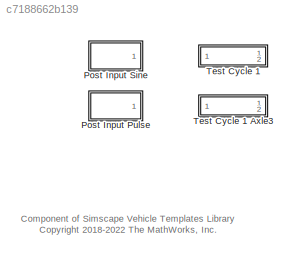
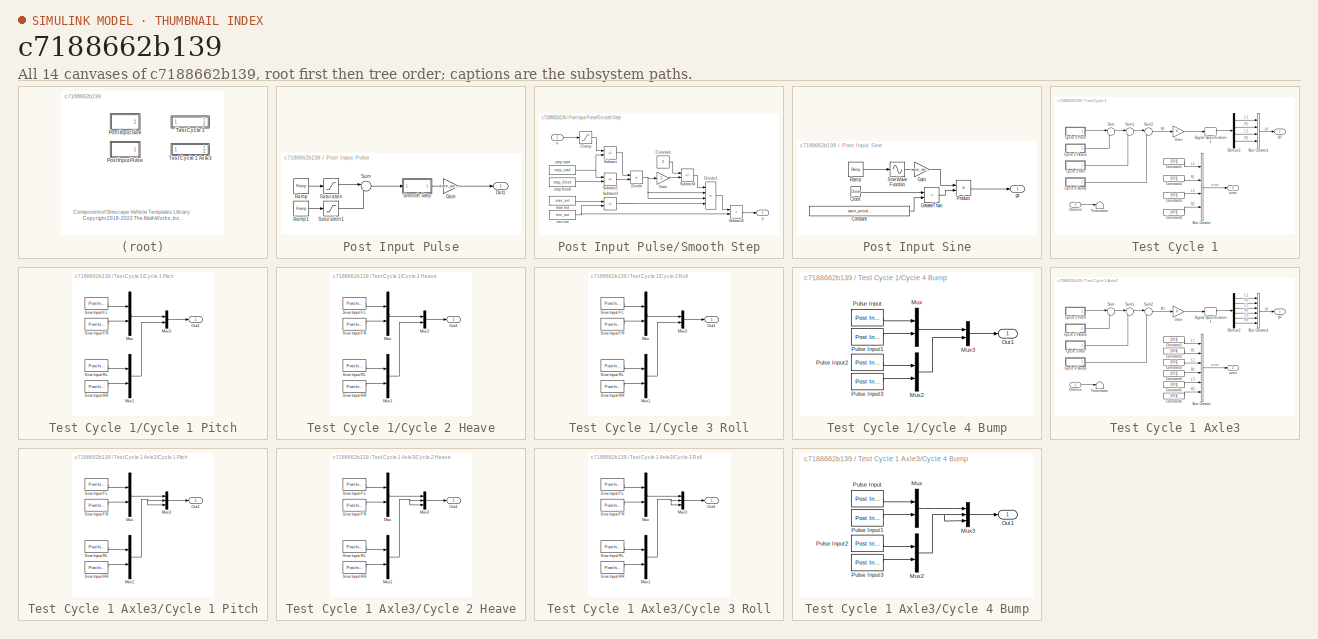
[diagram: thumbnail index - all 14 canvases of the model, root first then tree order]
MODEL slx_c7188662b139
KIND library
CONFIG AbsTol = auto
CONFIG EnableMultiTasking = off
CONFIG FixedStep = auto
CONFIG MaxStep = auto
CONFIG MinStep = auto
CONFIG RelTol = 1e-3
CONFIG SampleTimeConstraint = Unconstrained
CONFIG SolverName = VariableStepAuto
CONFIG StartTime = 0.0
CONFIG StopTime = 10.0
BLOCK [SubSystem] Post Input Pulse
  Ports = [0, 1]
  RequestExecContextInheritance = off
BLOCK [Gain] Post Input Pulse/Gain
  Gain = wave_amplitude
BLOCK [Outport] Post Input Pulse/Out1
  VectorParamsAs1DForOutWhenUnconnected = off
BLOCK [Reference] Post Input Pulse/Ramp  REF=simulink/Sources/Ramp
  Ports = [0, 1]
  SourceBlock = simulink/Sources/Ramp
  SourceProductBaseCode = SL
  SourceType = Ramp
BLOCK [Reference] Post Input Pulse/Ramp1  REF=simulink/Sources/Ramp
  Ports = [0, 1]
  SourceBlock = simulink/Sources/Ramp
  SourceProductBaseCode = SL
  SourceType = Ramp
BLOCK [Saturate] Post Input Pulse/Saturation
  LowerLimit = 0
  UpperLimit = 1
BLOCK [Saturate] Post Input Pulse/Saturation1
  LowerLimit = -1
  UpperLimit = 0
BLOCK [SubSystem] Post Input Pulse/Smooth Step
  Ports = [1, 1]
  RequestExecContextInheritance = off
BLOCK [Saturate] Post Input Pulse/Smooth Step/Clamp
  LowerLimit = step_start
  NameLocation = top
  UpperLimit = step_finish
BLOCK [Constant] Post Input Pulse/Smooth Step/Constant
  NameLocation = top
  Value = 3
BLOCK [Product] Post Input Pulse/Smooth Step/Divide
  Inputs = */
  Ports = [2, 1]
BLOCK [Product] Post Input Pulse/Smooth Step/Divide1
  Inputs = ****
  NameLocation = top
  Ports = [4, 1]
BLOCK [Gain] Post Input Pulse/Smooth Step/Gain
  Gain = 2
BLOCK [Sum] Post Input Pulse/Smooth Step/Subtract
  IconShape = rectangular
  Inputs = +-
  Ports = [2, 1]
BLOCK [Sum] Post Input Pulse/Smooth Step/Subtract1
  IconShape = rectangular
  Inputs = -+
  Ports = [2, 1]
BLOCK [Sum] Post Input Pulse/Smooth Step/Subtract2
  IconShape = rectangular
  Ports = [2, 1]
BLOCK [Sum] Post Input Pulse/Smooth Step/Subtract3
  IconShape = rectangular
  Inputs = +-
  Ports = [2, 1]
BLOCK [Sum] Post Input Pulse/Smooth Step/Subtract4
  IconShape = rectangular
  Inputs = +-
  Ports = [2, 1]
BLOCK [Constant] Post Input Pulse/Smooth Step/max out
  Value = max_out
BLOCK [Constant] Post Input Pulse/Smooth Step/min out
  Value = min_out
BLOCK [Constant] Post Input Pulse/Smooth Step/step finish
  Value = step_finish
BLOCK [Constant] Post Input Pulse/Smooth Step/step start
  Value = step_start
BLOCK [Inport] Post Input Pulse/Smooth Step/u
  NameLocation = top
BLOCK [Outport] Post Input Pulse/Smooth Step/y
  VectorParamsAs1DForOutWhenUnconnected = off
BLOCK [Sum] Post Input Pulse/Sum
  Inputs = |++
  Ports = [2, 1]
BLOCK [SubSystem] Post Input Sine
  Ports = [0, 1]
  RequestExecContextInheritance = off
BLOCK [Clock] Post Input Sine/Clock
BLOCK [Constant] Post Input Sine/Constant
  Value = wave_period*num_periods+wave_delay
BLOCK [Gain] Post Input Sine/Gain
  Gain = wave_amplitude
BLOCK [RelationalOperator] Post Input Sine/GreaterThan
  InputSameDT = off
  Operator = <
  OutDataTypeStr = boolean
  Ports = [2, 1]
  RndMeth = Simplest
BLOCK [Product] Post Input Sine/Product
  Ports = [2, 1]
BLOCK [Reference] Post Input Sine/Ramp  REF=simulink/Sources/Ramp
  Ports = [0, 1]
  SourceBlock = simulink/Sources/Ramp
  SourceProductBaseCode = SL
  SourceType = Ramp
BLOCK [Sin] Post Input Sine/Sine Wave Function
  Ports = [1, 1]
  SampleTime = 0
  TimeSource = Use external signal
BLOCK [Outport] Post Input Sine/gz
  VectorParamsAs1DForOutWhenUnconnected = off
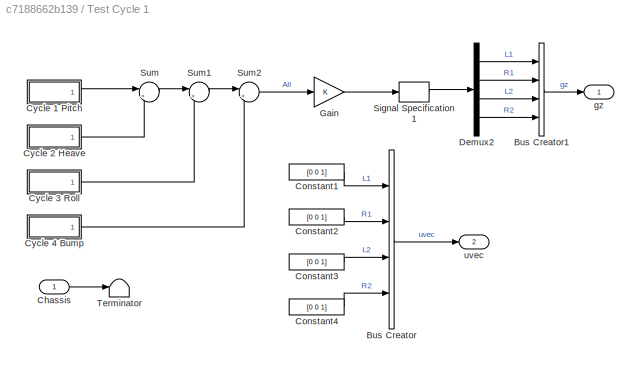
BLOCK [SubSystem] Test Cycle 1
  Ports = [1, 2]
  RequestExecContextInheritance = off
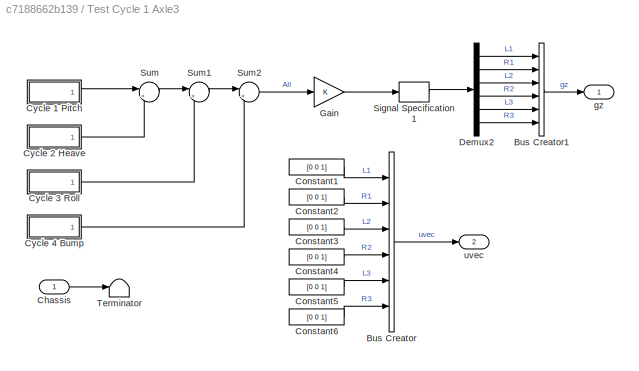
BLOCK [SubSystem] Test Cycle 1 Axle3
  Ports = [1, 2]
  RequestExecContextInheritance = off
BLOCK [BusCreator] Test Cycle 1 Axle3/Bus Creator
  DisplayOption = bar
  InheritFromInputs = on
  Inputs = 6
  Ports = [6, 1]
BLOCK [BusCreator] Test Cycle 1 Axle3/Bus Creator1
  DisplayOption = bar
  InheritFromInputs = on
  Inputs = 6
  Ports = [6, 1]
BLOCK [Inport] Test Cycle 1 Axle3/Chassis
BLOCK [Constant] Test Cycle 1 Axle3/Constant1
  Value = [0 0 1]
BLOCK [Constant] Test Cycle 1 Axle3/Constant2
  Value = [0 0 1]
BLOCK [Constant] Test Cycle 1 Axle3/Constant3
  Value = [0 0 1]
BLOCK [Constant] Test Cycle 1 Axle3/Constant4
  Value = [0 0 1]
BLOCK [Constant] Test Cycle 1 Axle3/Constant5
  Value = [0 0 1]
BLOCK [Constant] Test Cycle 1 Axle3/Constant6
  Value = [0 0 1]
BLOCK [SubSystem] Test Cycle 1 Axle3/Cycle 1 Pitch
  Ports = [0, 1]
  RequestExecContextInheritance = off
BLOCK [Mux] Test Cycle 1 Axle3/Cycle 1 Pitch/Mux
  DisplayOption = bar
  Inputs = 2
  Ports = [2, 1]
BLOCK [Mux] Test Cycle 1 Axle3/Cycle 1 Pitch/Mux1
  DisplayOption = bar
  Inputs = 2
  Ports = [2, 1]
BLOCK [Mux] Test Cycle 1 Axle3/Cycle 1 Pitch/Mux3
  DisplayOption = bar
  Inputs = 3
  Ports = [3, 1]
BLOCK [Outport] Test Cycle 1 Axle3/Cycle 1 Pitch/Out1
  VectorParamsAs1DForOutWhenUnconnected = off
BLOCK [Reference] Test Cycle 1 Axle3/Cycle 1 Pitch/Sine Input FL  REF=$bdroot/Post Input Sine
  Ports = [0, 1]
  SourceBlock = $bdroot/Post Input Sine
  SourceType = Sine Wave
BLOCK [Reference] Test Cycle 1 Axle3/Cycle 1 Pitch/Sine Input FR  REF=$bdroot/Post Input Sine
  Ports = [0, 1]
  SourceBlock = $bdroot/Post Input Sine
  SourceType = Sine Wave
BLOCK [Reference] Test Cycle 1 Axle3/Cycle 1 Pitch/Sine Input RL  REF=$bdroot/Post Input Sine
  Ports = [0, 1]
  SourceBlock = $bdroot/Post Input Sine
  SourceType = Sine Wave
BLOCK [Reference] Test Cycle 1 Axle3/Cycle 1 Pitch/Sine Input RR  REF=$bdroot/Post Input Sine
  Ports = [0, 1]
  SourceBlock = $bdroot/Post Input Sine
  SourceType = Sine Wave
BLOCK [SubSystem] Test Cycle 1 Axle3/Cycle 2 Heave
  Ports = [0, 1]
  RequestExecContextInheritance = off
BLOCK [Mux] Test Cycle 1 Axle3/Cycle 2 Heave/Mux
  DisplayOption = bar
  Inputs = 2
  Ports = [2, 1]
BLOCK [Mux] Test Cycle 1 Axle3/Cycle 2 Heave/Mux1
  DisplayOption = bar
  Inputs = 2
  Ports = [2, 1]
BLOCK [Mux] Test Cycle 1 Axle3/Cycle 2 Heave/Mux3
  DisplayOption = bar
  Inputs = 3
  Ports = [3, 1]
BLOCK [Outport] Test Cycle 1 Axle3/Cycle 2 Heave/Out1
  VectorParamsAs1DForOutWhenUnconnected = off
BLOCK [Reference] Test Cycle 1 Axle3/Cycle 2 Heave/Sine Input FL  REF=$bdroot/Post Input Sine
  Ports = [0, 1]
  SourceBlock = $bdroot/Post Input Sine
  SourceType = Sine Wave
BLOCK [Reference] Test Cycle 1 Axle3/Cycle 2 Heave/Sine Input FR  REF=$bdroot/Post Input Sine
  Ports = [0, 1]
  SourceBlock = $bdroot/Post Input Sine
  SourceType = Sine Wave
BLOCK [Reference] Test Cycle 1 Axle3/Cycle 2 Heave/Sine Input RL  REF=$bdroot/Post Input Sine
  Ports = [0, 1]
  SourceBlock = $bdroot/Post Input Sine
  SourceType = Sine Wave
BLOCK [Reference] Test Cycle 1 Axle3/Cycle 2 Heave/Sine Input RR  REF=$bdroot/Post Input Sine
  Ports = [0, 1]
  SourceBlock = $bdroot/Post Input Sine
  SourceType = Sine Wave
BLOCK [SubSystem] Test Cycle 1 Axle3/Cycle 3 Roll
  Ports = [0, 1]
  RequestExecContextInheritance = off
BLOCK [Mux] Test Cycle 1 Axle3/Cycle 3 Roll/Mux
  DisplayOption = bar
  Inputs = 2
  Ports = [2, 1]
BLOCK [Mux] Test Cycle 1 Axle3/Cycle 3 Roll/Mux1
  DisplayOption = bar
  Inputs = 2
  Ports = [2, 1]
BLOCK [Mux] Test Cycle 1 Axle3/Cycle 3 Roll/Mux3
  DisplayOption = bar
  Inputs = 3
  Ports = [3, 1]
BLOCK [Outport] Test Cycle 1 Axle3/Cycle 3 Roll/Out1
  VectorParamsAs1DForOutWhenUnconnected = off
BLOCK [Reference] Test Cycle 1 Axle3/Cycle 3 Roll/Sine Input FL  REF=$bdroot/Post Input Sine
  Ports = [0, 1]
  SourceBlock = $bdroot/Post Input Sine
  SourceType = Sine Wave
BLOCK [Reference] Test Cycle 1 Axle3/Cycle 3 Roll/Sine Input FR  REF=$bdroot/Post Input Sine
  Ports = [0, 1]
  SourceBlock = $bdroot/Post Input Sine
  SourceType = Sine Wave
BLOCK [Reference] Test Cycle 1 Axle3/Cycle 3 Roll/Sine Input RL  REF=$bdroot/Post Input Sine
  Ports = [0, 1]
  SourceBlock = $bdroot/Post Input Sine
  SourceType = Sine Wave
BLOCK [Reference] Test Cycle 1 Axle3/Cycle 3 Roll/Sine Input RR  REF=$bdroot/Post Input Sine
  Ports = [0, 1]
  SourceBlock = $bdroot/Post Input Sine
  SourceType = Sine Wave
BLOCK [SubSystem] Test Cycle 1 Axle3/Cycle 4 Bump
  Ports = [0, 1]
  RequestExecContextInheritance = off
BLOCK [Mux] Test Cycle 1 Axle3/Cycle 4 Bump/Mux
  DisplayOption = bar
  Inputs = 2
  Ports = [2, 1]
BLOCK [Mux] Test Cycle 1 Axle3/Cycle 4 Bump/Mux2
  DisplayOption = bar
  Inputs = 2
  Ports = [2, 1]
BLOCK [Mux] Test Cycle 1 Axle3/Cycle 4 Bump/Mux3
  DisplayOption = bar
  Inputs = 3
  Ports = [3, 1]
BLOCK [Outport] Test Cycle 1 Axle3/Cycle 4 Bump/Out1
  VectorParamsAs1DForOutWhenUnconnected = off
BLOCK [Reference] Test Cycle 1 Axle3/Cycle 4 Bump/Pulse Input  REF=$bdroot/Post Input Pulse
  Ports = [0, 1]
  SourceBlock = $bdroot/Post Input Pulse
  SourceType = Smooth Pulse
BLOCK [Reference] Test Cycle 1 Axle3/Cycle 4 Bump/Pulse Input1  REF=$bdroot/Post Input Pulse
  Ports = [0, 1]
  SourceBlock = $bdroot/Post Input Pulse
  SourceType = Smooth Pulse
BLOCK [Reference] Test Cycle 1 Axle3/Cycle 4 Bump/Pulse Input2  REF=$bdroot/Post Input Pulse
  Ports = [0, 1]
  SourceBlock = $bdroot/Post Input Pulse
  SourceType = Smooth Pulse
BLOCK [Reference] Test Cycle 1 Axle3/Cycle 4 Bump/Pulse Input3  REF=$bdroot/Post Input Pulse
  Ports = [0, 1]
  SourceBlock = $bdroot/Post Input Pulse
  SourceType = Smooth Pulse
BLOCK [Demux] Test Cycle 1 Axle3/Demux2
  Outputs = 6
  Ports = [1, 6]
BLOCK [Gain] Test Cycle 1 Axle3/Gain
BLOCK [SignalSpecification] Test Cycle 1 Axle3/Signal Specification1
  Unit = m
BLOCK [Sum] Test Cycle 1 Axle3/Sum
  Inputs = |++
  Ports = [2, 1]
BLOCK [Sum] Test Cycle 1 Axle3/Sum1
  Inputs = |++
  Ports = [2, 1]
BLOCK [Sum] Test Cycle 1 Axle3/Sum2
  Inputs = |++
  Ports = [2, 1]
BLOCK [Terminator] Test Cycle 1 Axle3/Terminator
BLOCK [Outport] Test Cycle 1 Axle3/gz
  VectorParamsAs1DForOutWhenUnconnected = off
BLOCK [Outport] Test Cycle 1 Axle3/uvec
  Port = 2
  VectorParamsAs1DForOutWhenUnconnected = off
BLOCK [BusCreator] Test Cycle 1/Bus Creator
  DisplayOption = bar
  InheritFromInputs = on
  Inputs = 4
  Ports = [4, 1]
BLOCK [BusCreator] Test Cycle 1/Bus Creator1
  DisplayOption = bar
  InheritFromInputs = on
  Inputs = 4
  Ports = [4, 1]
BLOCK [Inport] Test Cycle 1/Chassis
BLOCK [Constant] Test Cycle 1/Constant1
  Value = [0 0 1]
BLOCK [Constant] Test Cycle 1/Constant2
  Value = [0 0 1]
BLOCK [Constant] Test Cycle 1/Constant3
  Value = [0 0 1]
BLOCK [Constant] Test Cycle 1/Constant4
  Value = [0 0 1]
BLOCK [SubSystem] Test Cycle 1/Cycle 1 Pitch
  Ports = [0, 1]
  RequestExecContextInheritance = off
BLOCK [Mux] Test Cycle 1/Cycle 1 Pitch/Mux
  DisplayOption = bar
  Inputs = 2
  Ports = [2, 1]
BLOCK [Mux] Test Cycle 1/Cycle 1 Pitch/Mux1
  DisplayOption = bar
  Inputs = 2
  Ports = [2, 1]
BLOCK [Mux] Test Cycle 1/Cycle 1 Pitch/Mux3
  DisplayOption = bar
  Inputs = 2
  Ports = [2, 1]
BLOCK [Outport] Test Cycle 1/Cycle 1 Pitch/Out1
  VectorParamsAs1DForOutWhenUnconnected = off
BLOCK [Reference] Test Cycle 1/Cycle 1 Pitch/Sine Input FL  REF=$bdroot/Post Input Sine
  Ports = [0, 1]
  SourceBlock = $bdroot/Post Input Sine
  SourceType = Sine Wave
BLOCK [Reference] Test Cycle 1/Cycle 1 Pitch/Sine Input FR  REF=$bdroot/Post Input Sine
  Ports = [0, 1]
  SourceBlock = $bdroot/Post Input Sine
  SourceType = Sine Wave
BLOCK [Reference] Test Cycle 1/Cycle 1 Pitch/Sine Input RL  REF=$bdroot/Post Input Sine
  Ports = [0, 1]
  SourceBlock = $bdroot/Post Input Sine
  SourceType = Sine Wave
BLOCK [Reference] Test Cycle 1/Cycle 1 Pitch/Sine Input RR  REF=$bdroot/Post Input Sine
  Ports = [0, 1]
  SourceBlock = $bdroot/Post Input Sine
  SourceType = Sine Wave
BLOCK [SubSystem] Test Cycle 1/Cycle 2 Heave
  Ports = [0, 1]
  RequestExecContextInheritance = off
BLOCK [Mux] Test Cycle 1/Cycle 2 Heave/Mux
  DisplayOption = bar
  Inputs = 2
  Ports = [2, 1]
BLOCK [Mux] Test Cycle 1/Cycle 2 Heave/Mux1
  DisplayOption = bar
  Inputs = 2
  Ports = [2, 1]
BLOCK [Mux] Test Cycle 1/Cycle 2 Heave/Mux3
  DisplayOption = bar
  Inputs = 2
  Ports = [2, 1]
BLOCK [Outport] Test Cycle 1/Cycle 2 Heave/Out1
  VectorParamsAs1DForOutWhenUnconnected = off
BLOCK [Reference] Test Cycle 1/Cycle 2 Heave/Sine Input FL  REF=$bdroot/Post Input Sine
  Ports = [0, 1]
  SourceBlock = $bdroot/Post Input Sine
  SourceType = Sine Wave
BLOCK [Reference] Test Cycle 1/Cycle 2 Heave/Sine Input FR  REF=$bdroot/Post Input Sine
  Ports = [0, 1]
  SourceBlock = $bdroot/Post Input Sine
  SourceType = Sine Wave
BLOCK [Reference] Test Cycle 1/Cycle 2 Heave/Sine Input RL  REF=$bdroot/Post Input Sine
  Ports = [0, 1]
  SourceBlock = $bdroot/Post Input Sine
  SourceType = Sine Wave
BLOCK [Reference] Test Cycle 1/Cycle 2 Heave/Sine Input RR  REF=$bdroot/Post Input Sine
  Ports = [0, 1]
  SourceBlock = $bdroot/Post Input Sine
  SourceType = Sine Wave
BLOCK [SubSystem] Test Cycle 1/Cycle 3 Roll
  Ports = [0, 1]
  RequestExecContextInheritance = off
BLOCK [Mux] Test Cycle 1/Cycle 3 Roll/Mux
  DisplayOption = bar
  Inputs = 2
  Ports = [2, 1]
BLOCK [Mux] Test Cycle 1/Cycle 3 Roll/Mux1
  DisplayOption = bar
  Inputs = 2
  Ports = [2, 1]
BLOCK [Mux] Test Cycle 1/Cycle 3 Roll/Mux3
  DisplayOption = bar
  Inputs = 2
  Ports = [2, 1]
BLOCK [Outport] Test Cycle 1/Cycle 3 Roll/Out1
  VectorParamsAs1DForOutWhenUnconnected = off
BLOCK [Reference] Test Cycle 1/Cycle 3 Roll/Sine Input FL  REF=$bdroot/Post Input Sine
  Ports = [0, 1]
  SourceBlock = $bdroot/Post Input Sine
  SourceType = Sine Wave
BLOCK [Reference] Test Cycle 1/Cycle 3 Roll/Sine Input FR  REF=$bdroot/Post Input Sine
  Ports = [0, 1]
  SourceBlock = $bdroot/Post Input Sine
  SourceType = Sine Wave
BLOCK [Reference] Test Cycle 1/Cycle 3 Roll/Sine Input RL  REF=$bdroot/Post Input Sine
  Ports = [0, 1]
  SourceBlock = $bdroot/Post Input Sine
  SourceType = Sine Wave
BLOCK [Reference] Test Cycle 1/Cycle 3 Roll/Sine Input RR  REF=$bdroot/Post Input Sine
  Ports = [0, 1]
  SourceBlock = $bdroot/Post Input Sine
  SourceType = Sine Wave
BLOCK [SubSystem] Test Cycle 1/Cycle 4 Bump
  Ports = [0, 1]
  RequestExecContextInheritance = off
BLOCK [Mux] Test Cycle 1/Cycle 4 Bump/Mux
  DisplayOption = bar
  Inputs = 2
  Ports = [2, 1]
BLOCK [Mux] Test Cycle 1/Cycle 4 Bump/Mux2
  DisplayOption = bar
  Inputs = 2
  Ports = [2, 1]
BLOCK [Mux] Test Cycle 1/Cycle 4 Bump/Mux3
  DisplayOption = bar
  Inputs = 2
  Ports = [2, 1]
BLOCK [Outport] Test Cycle 1/Cycle 4 Bump/Out1
  VectorParamsAs1DForOutWhenUnconnected = off
BLOCK [Reference] Test Cycle 1/Cycle 4 Bump/Pulse Input  REF=$bdroot/Post Input Pulse
  Ports = [0, 1]
  SourceBlock = $bdroot/Post Input Pulse
  SourceType = Smooth Pulse
BLOCK [Reference] Test Cycle 1/Cycle 4 Bump/Pulse Input1  REF=$bdroot/Post Input Pulse
  Ports = [0, 1]
  SourceBlock = $bdroot/Post Input Pulse
  SourceType = Smooth Pulse
BLOCK [Reference] Test Cycle 1/Cycle 4 Bump/Pulse Input2  REF=$bdroot/Post Input Pulse
  Ports = [0, 1]
  SourceBlock = $bdroot/Post Input Pulse
  SourceType = Smooth Pulse
BLOCK [Reference] Test Cycle 1/Cycle 4 Bump/Pulse Input3  REF=$bdroot/Post Input Pulse
  Ports = [0, 1]
  SourceBlock = $bdroot/Post Input Pulse
  SourceType = Smooth Pulse
BLOCK [Demux] Test Cycle 1/Demux2
  Ports = [1, 4]
BLOCK [Gain] Test Cycle 1/Gain
BLOCK [SignalSpecification] Test Cycle 1/Signal Specification1
  Unit = m
BLOCK [Sum] Test Cycle 1/Sum
  Inputs = |++
  Ports = [2, 1]
BLOCK [Sum] Test Cycle 1/Sum1
  Inputs = |++
  Ports = [2, 1]
BLOCK [Sum] Test Cycle 1/Sum2
  Inputs = |++
  Ports = [2, 1]
BLOCK [Terminator] Test Cycle 1/Terminator
BLOCK [Outport] Test Cycle 1/gz
  VectorParamsAs1DForOutWhenUnconnected = off
BLOCK [Outport] Test Cycle 1/uvec
  Port = 2
  VectorParamsAs1DForOutWhenUnconnected = off
ANNOTATION (root): Component of Simscape Vehicle Templates Library <copyright redacted>
LINE Post Input Pulse/Gain:1 -> Post Input Pulse/Out1:1
LINE Post Input Pulse/Ramp1:1 -> Post Input Pulse/Saturation1:1
LINE Post Input Pulse/Ramp:1 -> Post Input Pulse/Saturation:1
LINE Post Input Pulse/Saturation1:1 -> Post Input Pulse/Sum:2
LINE Post Input Pulse/Saturation:1 -> Post Input Pulse/Sum:1
LINE Post Input Pulse/Smooth Step/Clamp:1 -> Post Input Pulse/Smooth Step/Subtract:1
LINE Post Input Pulse/Smooth Step/Constant:1 -> Post Input Pulse/Smooth Step/Subtract4:1
LINE Post Input Pulse/Smooth Step/Divide1:1 -> Post Input Pulse/Smooth Step/Subtract2:1
NET Post Input Pulse/Smooth Step/Divide:1 -> Post Input Pulse/Smooth Step/Divide1:2, Post Input Pulse/Smooth Step/Divide1:3, Post Input Pulse/Smooth Step/Gain:1
LINE Post Input Pulse/Smooth Step/Gain:1 -> Post Input Pulse/Smooth Step/Subtract4:2
LINE Post Input Pulse/Smooth Step/Subtract1:1 -> Post Input Pulse/Smooth Step/Divide:2
LINE Post Input Pulse/Smooth Step/Subtract2:1 -> Post Input Pulse/Smooth Step/y:1
LINE Post Input Pulse/Smooth Step/Subtract3:1 -> Post Input Pulse/Smooth Step/Divide1:4
LINE Post Input Pulse/Smooth Step/Subtract4:1 -> Post Input Pulse/Smooth Step/Divide1:1
LINE Post Input Pulse/Smooth Step/Subtract:1 -> Post Input Pulse/Smooth Step/Divide:1
LINE Post Input Pulse/Smooth Step/max out:1 -> Post Input Pulse/Smooth Step/Subtract3:1
NET Post Input Pulse/Smooth Step/min out:1 -> Post Input Pulse/Smooth Step/Subtract2:2, Post Input Pulse/Smooth Step/Subtract3:2
LINE Post Input Pulse/Smooth Step/step finish:1 -> Post Input Pulse/Smooth Step/Subtract1:2
NET Post Input Pulse/Smooth Step/step start:1 -> Post Input Pulse/Smooth Step/Subtract1:1, Post Input Pulse/Smooth Step/Subtract:2
LINE Post Input Pulse/Smooth Step/u:1 -> Post Input Pulse/Smooth Step/Clamp:1
LINE Post Input Pulse/Smooth Step:1 -> Post Input Pulse/Gain:1
LINE Post Input Pulse/Sum:1 -> Post Input Pulse/Smooth Step:1
LINE Post Input Sine/Clock:1 -> Post Input Sine/GreaterThan:1
LINE Post Input Sine/Constant:1 -> Post Input Sine/GreaterThan:2
LINE Post Input Sine/Gain:1 -> Post Input Sine/Product:1
LINE Post Input Sine/GreaterThan:1 -> Post Input Sine/Product:2
LINE Post Input Sine/Product:1 -> Post Input Sine/gz:1
LINE Post Input Sine/Ramp:1 -> Post Input Sine/Sine Wave Function:1
LINE Post Input Sine/Sine Wave Function:1 -> Post Input Sine/Gain:1
LINE Test Cycle 1 Axle3/Bus Creator1:1 -> Test Cycle 1 Axle3/gz:1
LINE Test Cycle 1 Axle3/Bus Creator:1 -> Test Cycle 1 Axle3/uvec:1
LINE Test Cycle 1 Axle3/Chassis:1 -> Test Cycle 1 Axle3/Terminator:1
LINE Test Cycle 1 Axle3/Constant1:1 -> Test Cycle 1 Axle3/Bus Creator:1
LINE Test Cycle 1 Axle3/Constant2:1 -> Test Cycle 1 Axle3/Bus Creator:2
LINE Test Cycle 1 Axle3/Constant3:1 -> Test Cycle 1 Axle3/Bus Creator:3
LINE Test Cycle 1 Axle3/Constant4:1 -> Test Cycle 1 Axle3/Bus Creator:4
LINE Test Cycle 1 Axle3/Constant5:1 -> Test Cycle 1 Axle3/Bus Creator:5
LINE Test Cycle 1 Axle3/Constant6:1 -> Test Cycle 1 Axle3/Bus Creator:6
NET Test Cycle 1 Axle3/Cycle 1 Pitch/Mux1:1 -> Test Cycle 1 Axle3/Cycle 1 Pitch/Mux3:2, Test Cycle 1 Axle3/Cycle 1 Pitch/Mux3:3
LINE Test Cycle 1 Axle3/Cycle 1 Pitch/Mux3:1 -> Test Cycle 1 Axle3/Cycle 1 Pitch/Out1:1
LINE Test Cycle 1 Axle3/Cycle 1 Pitch/Mux:1 -> Test Cycle 1 Axle3/Cycle 1 Pitch/Mux3:1
LINE Test Cycle 1 Axle3/Cycle 1 Pitch/Sine Input FL:1 -> Test Cycle 1 Axle3/Cycle 1 Pitch/Mux:1
LINE Test Cycle 1 Axle3/Cycle 1 Pitch/Sine Input FR:1 -> Test Cycle 1 Axle3/Cycle 1 Pitch/Mux:2
LINE Test Cycle 1 Axle3/Cycle 1 Pitch/Sine Input RL:1 -> Test Cycle 1 Axle3/Cycle 1 Pitch/Mux1:1
LINE Test Cycle 1 Axle3/Cycle 1 Pitch/Sine Input RR:1 -> Test Cycle 1 Axle3/Cycle 1 Pitch/Mux1:2
LINE Test Cycle 1 Axle3/Cycle 1 Pitch:1 -> Test Cycle 1 Axle3/Sum:1
NET Test Cycle 1 Axle3/Cycle 2 Heave/Mux1:1 -> Test Cycle 1 Axle3/Cycle 2 Heave/Mux3:2, Test Cycle 1 Axle3/Cycle 2 Heave/Mux3:3
LINE Test Cycle 1 Axle3/Cycle 2 Heave/Mux3:1 -> Test Cycle 1 Axle3/Cycle 2 Heave/Out1:1
LINE Test Cycle 1 Axle3/Cycle 2 Heave/Mux:1 -> Test Cycle 1 Axle3/Cycle 2 Heave/Mux3:1
LINE Test Cycle 1 Axle3/Cycle 2 Heave/Sine Input FL:1 -> Test Cycle 1 Axle3/Cycle 2 Heave/Mux:1
LINE Test Cycle 1 Axle3/Cycle 2 Heave/Sine Input FR:1 -> Test Cycle 1 Axle3/Cycle 2 Heave/Mux:2
LINE Test Cycle 1 Axle3/Cycle 2 Heave/Sine Input RL:1 -> Test Cycle 1 Axle3/Cycle 2 Heave/Mux1:1
LINE Test Cycle 1 Axle3/Cycle 2 Heave/Sine Input RR:1 -> Test Cycle 1 Axle3/Cycle 2 Heave/Mux1:2
LINE Test Cycle 1 Axle3/Cycle 2 Heave:1 -> Test Cycle 1 Axle3/Sum:2
NET Test Cycle 1 Axle3/Cycle 3 Roll/Mux1:1 -> Test Cycle 1 Axle3/Cycle 3 Roll/Mux3:2, Test Cycle 1 Axle3/Cycle 3 Roll/Mux3:3
LINE Test Cycle 1 Axle3/Cycle 3 Roll/Mux3:1 -> Test Cycle 1 Axle3/Cycle 3 Roll/Out1:1
LINE Test Cycle 1 Axle3/Cycle 3 Roll/Mux:1 -> Test Cycle 1 Axle3/Cycle 3 Roll/Mux3:1
LINE Test Cycle 1 Axle3/Cycle 3 Roll/Sine Input FL:1 -> Test Cycle 1 Axle3/Cycle 3 Roll/Mux:1
LINE Test Cycle 1 Axle3/Cycle 3 Roll/Sine Input FR:1 -> Test Cycle 1 Axle3/Cycle 3 Roll/Mux:2
LINE Test Cycle 1 Axle3/Cycle 3 Roll/Sine Input RL:1 -> Test Cycle 1 Axle3/Cycle 3 Roll/Mux1:1
LINE Test Cycle 1 Axle3/Cycle 3 Roll/Sine Input RR:1 -> Test Cycle 1 Axle3/Cycle 3 Roll/Mux1:2
LINE Test Cycle 1 Axle3/Cycle 3 Roll:1 -> Test Cycle 1 Axle3/Sum1:2
NET Test Cycle 1 Axle3/Cycle 4 Bump/Mux2:1 -> Test Cycle 1 Axle3/Cycle 4 Bump/Mux3:2, Test Cycle 1 Axle3/Cycle 4 Bump/Mux3:3
LINE Test Cycle 1 Axle3/Cycle 4 Bump/Mux3:1 -> Test Cycle 1 Axle3/Cycle 4 Bump/Out1:1
LINE Test Cycle 1 Axle3/Cycle 4 Bump/Mux:1 -> Test Cycle 1 Axle3/Cycle 4 Bump/Mux3:1
LINE Test Cycle 1 Axle3/Cycle 4 Bump/Pulse Input1:1 -> Test Cycle 1 Axle3/Cycle 4 Bump/Mux:2
LINE Test Cycle 1 Axle3/Cycle 4 Bump/Pulse Input2:1 -> Test Cycle 1 Axle3/Cycle 4 Bump/Mux2:1
LINE Test Cycle 1 Axle3/Cycle 4 Bump/Pulse Input3:1 -> Test Cycle 1 Axle3/Cycle 4 Bump/Mux2:2
LINE Test Cycle 1 Axle3/Cycle 4 Bump/Pulse Input:1 -> Test Cycle 1 Axle3/Cycle 4 Bump/Mux:1
LINE Test Cycle 1 Axle3/Cycle 4 Bump:1 -> Test Cycle 1 Axle3/Sum2:2
LINE Test Cycle 1 Axle3/Demux2:1 -> Test Cycle 1 Axle3/Bus Creator1:1
LINE Test Cycle 1 Axle3/Demux2:2 -> Test Cycle 1 Axle3/Bus Creator1:2
LINE Test Cycle 1 Axle3/Demux2:3 -> Test Cycle 1 Axle3/Bus Creator1:3
LINE Test Cycle 1 Axle3/Demux2:4 -> Test Cycle 1 Axle3/Bus Creator1:4
LINE Test Cycle 1 Axle3/Demux2:5 -> Test Cycle 1 Axle3/Bus Creator1:5
LINE Test Cycle 1 Axle3/Demux2:6 -> Test Cycle 1 Axle3/Bus Creator1:6
LINE Test Cycle 1 Axle3/Gain:1 -> Test Cycle 1 Axle3/Signal Specification1:1
LINE Test Cycle 1 Axle3/Signal Specification1:1 -> Test Cycle 1 Axle3/Demux2:1
LINE Test Cycle 1 Axle3/Sum1:1 -> Test Cycle 1 Axle3/Sum2:1
LINE Test Cycle 1 Axle3/Sum2:1 -> Test Cycle 1 Axle3/Gain:1
LINE Test Cycle 1 Axle3/Sum:1 -> Test Cycle 1 Axle3/Sum1:1
LINE Test Cycle 1/Bus Creator1:1 -> Test Cycle 1/gz:1
LINE Test Cycle 1/Bus Creator:1 -> Test Cycle 1/uvec:1
LINE Test Cycle 1/Chassis:1 -> Test Cycle 1/Terminator:1
LINE Test Cycle 1/Constant1:1 -> Test Cycle 1/Bus Creator:1
LINE Test Cycle 1/Constant2:1 -> Test Cycle 1/Bus Creator:2
LINE Test Cycle 1/Constant3:1 -> Test Cycle 1/Bus Creator:3
LINE Test Cycle 1/Constant4:1 -> Test Cycle 1/Bus Creator:4
LINE Test Cycle 1/Cycle 1 Pitch/Mux1:1 -> Test Cycle 1/Cycle 1 Pitch/Mux3:2
LINE Test Cycle 1/Cycle 1 Pitch/Mux3:1 -> Test Cycle 1/Cycle 1 Pitch/Out1:1
LINE Test Cycle 1/Cycle 1 Pitch/Mux:1 -> Test Cycle 1/Cycle 1 Pitch/Mux3:1
LINE Test Cycle 1/Cycle 1 Pitch/Sine Input FL:1 -> Test Cycle 1/Cycle 1 Pitch/Mux:1
LINE Test Cycle 1/Cycle 1 Pitch/Sine Input FR:1 -> Test Cycle 1/Cycle 1 Pitch/Mux:2
LINE Test Cycle 1/Cycle 1 Pitch/Sine Input RL:1 -> Test Cycle 1/Cycle 1 Pitch/Mux1:1
LINE Test Cycle 1/Cycle 1 Pitch/Sine Input RR:1 -> Test Cycle 1/Cycle 1 Pitch/Mux1:2
LINE Test Cycle 1/Cycle 1 Pitch:1 -> Test Cycle 1/Sum:1
LINE Test Cycle 1/Cycle 2 Heave/Mux1:1 -> Test Cycle 1/Cycle 2 Heave/Mux3:2
LINE Test Cycle 1/Cycle 2 Heave/Mux3:1 -> Test Cycle 1/Cycle 2 Heave/Out1:1
LINE Test Cycle 1/Cycle 2 Heave/Mux:1 -> Test Cycle 1/Cycle 2 Heave/Mux3:1
LINE Test Cycle 1/Cycle 2 Heave/Sine Input FL:1 -> Test Cycle 1/Cycle 2 Heave/Mux:1
LINE Test Cycle 1/Cycle 2 Heave/Sine Input FR:1 -> Test Cycle 1/Cycle 2 Heave/Mux:2
LINE Test Cycle 1/Cycle 2 Heave/Sine Input RL:1 -> Test Cycle 1/Cycle 2 Heave/Mux1:1
LINE Test Cycle 1/Cycle 2 Heave/Sine Input RR:1 -> Test Cycle 1/Cycle 2 Heave/Mux1:2
LINE Test Cycle 1/Cycle 2 Heave:1 -> Test Cycle 1/Sum:2
LINE Test Cycle 1/Cycle 3 Roll/Mux1:1 -> Test Cycle 1/Cycle 3 Roll/Mux3:2
LINE Test Cycle 1/Cycle 3 Roll/Mux3:1 -> Test Cycle 1/Cycle 3 Roll/Out1:1
LINE Test Cycle 1/Cycle 3 Roll/Mux:1 -> Test Cycle 1/Cycle 3 Roll/Mux3:1
LINE Test Cycle 1/Cycle 3 Roll/Sine Input FL:1 -> Test Cycle 1/Cycle 3 Roll/Mux:1
LINE Test Cycle 1/Cycle 3 Roll/Sine Input FR:1 -> Test Cycle 1/Cycle 3 Roll/Mux:2
LINE Test Cycle 1/Cycle 3 Roll/Sine Input RL:1 -> Test Cycle 1/Cycle 3 Roll/Mux1:1
LINE Test Cycle 1/Cycle 3 Roll/Sine Input RR:1 -> Test Cycle 1/Cycle 3 Roll/Mux1:2
LINE Test Cycle 1/Cycle 3 Roll:1 -> Test Cycle 1/Sum1:2
LINE Test Cycle 1/Cycle 4 Bump/Mux2:1 -> Test Cycle 1/Cycle 4 Bump/Mux3:2
LINE Test Cycle 1/Cycle 4 Bump/Mux3:1 -> Test Cycle 1/Cycle 4 Bump/Out1:1
LINE Test Cycle 1/Cycle 4 Bump/Mux:1 -> Test Cycle 1/Cycle 4 Bump/Mux3:1
LINE Test Cycle 1/Cycle 4 Bump/Pulse Input1:1 -> Test Cycle 1/Cycle 4 Bump/Mux:2
LINE Test Cycle 1/Cycle 4 Bump/Pulse Input2:1 -> Test Cycle 1/Cycle 4 Bump/Mux2:1
LINE Test Cycle 1/Cycle 4 Bump/Pulse Input3:1 -> Test Cycle 1/Cycle 4 Bump/Mux2:2
LINE Test Cycle 1/Cycle 4 Bump/Pulse Input:1 -> Test Cycle 1/Cycle 4 Bump/Mux:1
LINE Test Cycle 1/Cycle 4 Bump:1 -> Test Cycle 1/Sum2:2
LINE Test Cycle 1/Demux2:1 -> Test Cycle 1/Bus Creator1:1
LINE Test Cycle 1/Demux2:2 -> Test Cycle 1/Bus Creator1:2
LINE Test Cycle 1/Demux2:3 -> Test Cycle 1/Bus Creator1:3
LINE Test Cycle 1/Demux2:4 -> Test Cycle 1/Bus Creator1:4
LINE Test Cycle 1/Gain:1 -> Test Cycle 1/Signal Specification1:1
LINE Test Cycle 1/Signal Specification1:1 -> Test Cycle 1/Demux2:1
LINE Test Cycle 1/Sum1:1 -> Test Cycle 1/Sum2:1
LINE Test Cycle 1/Sum2:1 -> Test Cycle 1/Gain:1
LINE Test Cycle 1/Sum:1 -> Test Cycle 1/Sum1:1
note: NET lines group one-source signal fan-out (src -> all destinations, sorted); 1:1 wires keep LINE
